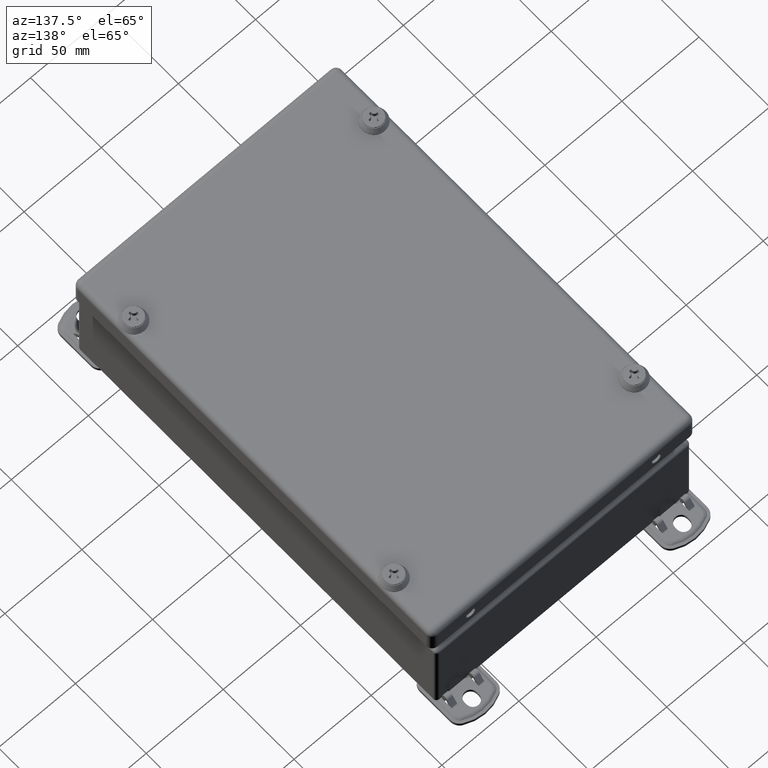
[diagram: clean part render]
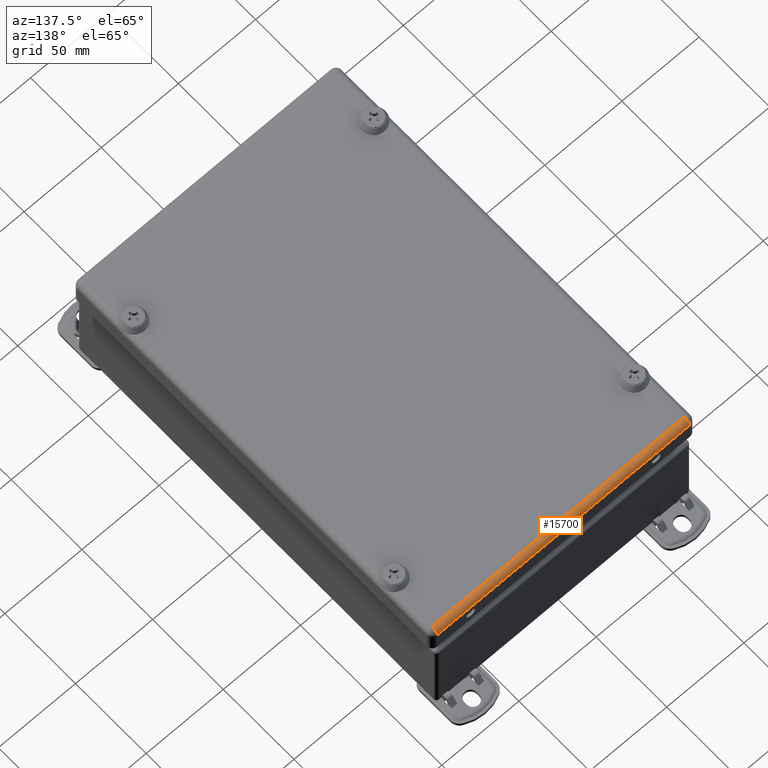
[diagram: same view with one face highlighted and labeled with its STEP entity id]
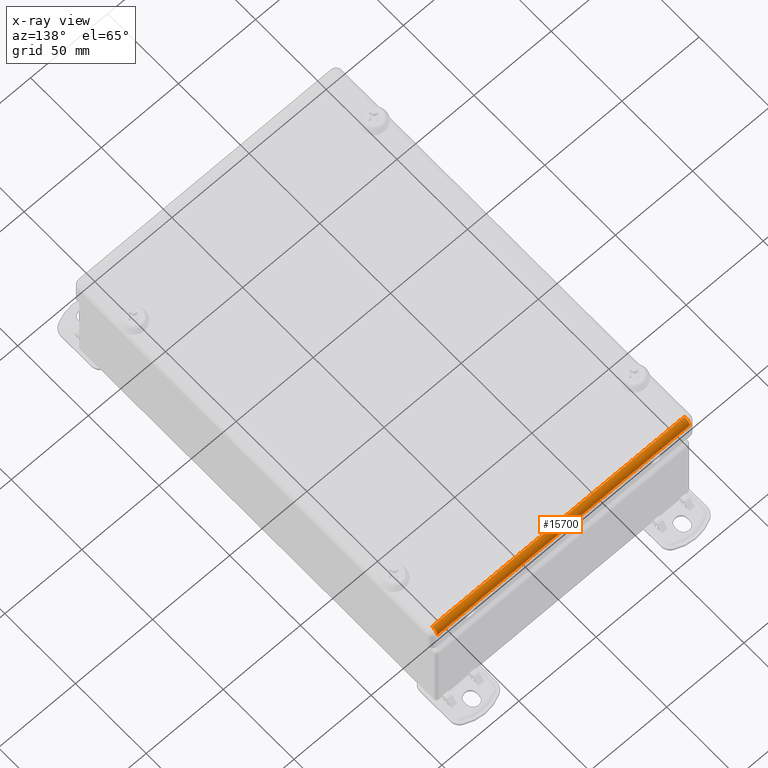
[diagram: x-ray of the same camera — body ghosted, the highlighted face saturated]
A machine part, auxiliary view. The second image highlights one B-rep face of the part: STEP entity #15700.
The next image is the same camera in x-ray: the body ghosted, the highlighted face saturated — about 0% of this face is hidden behind the body in this view.
In plain terms, the highlighted cylindrical surface (edge-blend (fillet) strip) has radius 3.7084 mm, axis along (-1, -0, 0).
Its self-contained STEP definition (entity closure, byte-faithful):
#1217=CYLINDRICAL_SURFACE('',#17839,0.146);
#2090=CIRCLE('',#17840,0.146);
#2091=CIRCLE('',#17841,0.146000000000004);
#3058=FACE_OUTER_BOUND('',#4064,.T.);
#4064=EDGE_LOOP('',(#14197,#14198,#14199,#14200));
#5144=LINE('',#32462,#6198);
#5145=LINE('',#32465,#6199);
#6198=VECTOR('',#22519,0.393700787401575);
#6199=VECTOR('',#22522,0.393700787401575);
#7538=VERTEX_POINT('',#32453);
#7539=VERTEX_POINT('',#32459);
#7540=VERTEX_POINT('',#32461);
#7541=VERTEX_POINT('',#32463);
#9774=EDGE_CURVE('',#7538,#7539,#2090,.T.);
#9775=EDGE_CURVE('',#7539,#7540,#5144,.T.);
#9776=EDGE_CURVE('',#7540,#7541,#2091,.T.);
#9777=EDGE_CURVE('',#7541,#7538,#5145,.T.);
#14197=ORIENTED_EDGE('',*,*,#9774,.T.);
#14198=ORIENTED_EDGE('',*,*,#9775,.T.);
#14199=ORIENTED_EDGE('',*,*,#9776,.T.);
#14200=ORIENTED_EDGE('',*,*,#9777,.T.);
#15700=ADVANCED_FACE('',(#3058),#1217,.T.);
#17839=AXIS2_PLACEMENT_3D('',#32458,#22515,#22516);
#17840=AXIS2_PLACEMENT_3D('',#32460,#22517,#22518);
#17841=AXIS2_PLACEMENT_3D('',#32464,#22520,#22521);
#22515=DIRECTION('center_axis',(-1.,0.,0.));
#22516=DIRECTION('ref_axis',(0.,0.707106781186549,0.707106781186546));
#22517=DIRECTION('center_axis',(-1.,0.,0.));
#22518=DIRECTION('ref_axis',(0.,0.,1.));
#22519=DIRECTION('',(-1.,0.,0.));
#22520=DIRECTION('center_axis',(1.,0.,0.));
#22521=DIRECTION('ref_axis',(0.,1.,0.));
#22522=DIRECTION('',(1.,0.,0.));
#32453=CARTESIAN_POINT('',(3.22211023622047,4.854,0.053));
#32458=CARTESIAN_POINT('Origin',(1.61105511811024,4.854,-0.093));
#32459=CARTESIAN_POINT('',(3.22211023622047,5.,-0.093));
#32460=CARTESIAN_POINT('Origin',(3.22211023622047,4.854,-0.093));
#32461=CARTESIAN_POINT('',(-3.22211023622047,5.,-0.093));
#32462=CARTESIAN_POINT('',(1.61105511811024,5.,-0.093));
#32463=CARTESIAN_POINT('',(-3.22211023622047,4.854,0.053));
#32464=CARTESIAN_POINT('Origin',(-3.22211023622047,4.854,-0.093));
#32465=CARTESIAN_POINT('',(1.61105511811024,4.854,0.053));